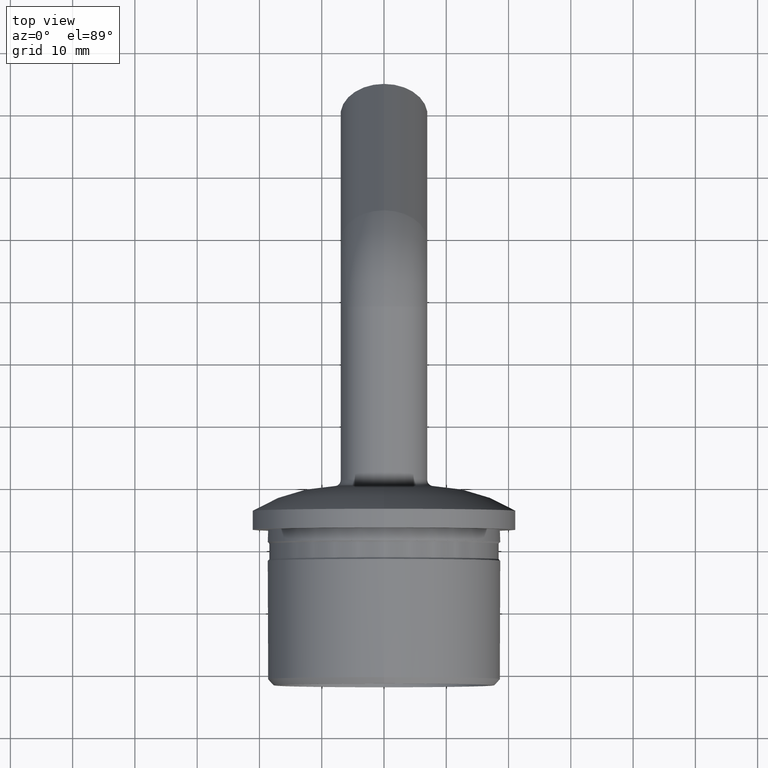
[diagram: clean part render]
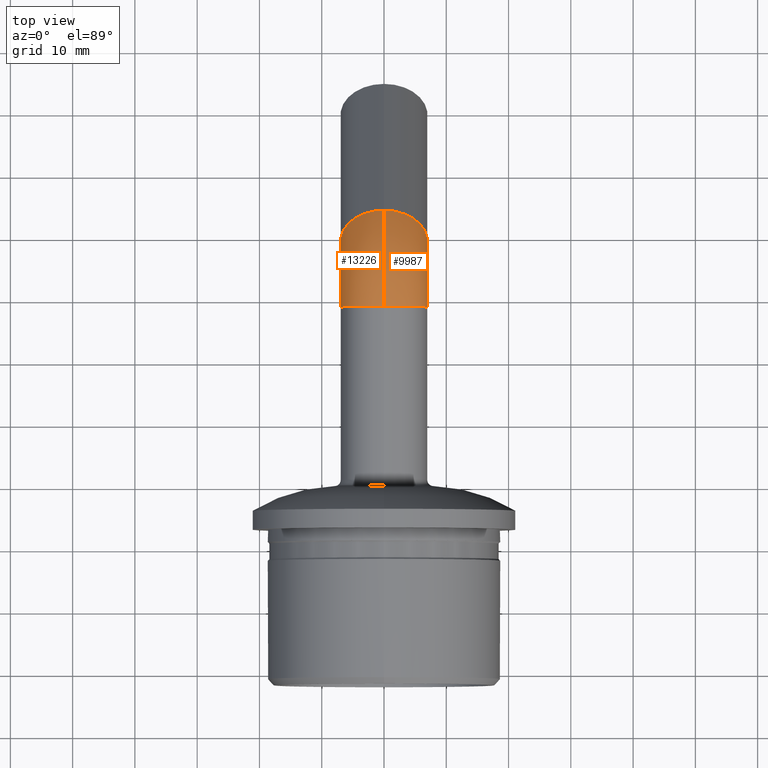
[diagram: same view with one multi-face feature highlighted, each face labeled with its STEP entity id]
A machine part, top view. The highlighted faces form ONE feature: a constant-radius fillet chain: 2 tangent blend faces with common blend radius 7 mm. The faces share edges in the B-rep.
Their STEP definitions:
[1] entity #13226 (Torus):
#99 = VERTEX_POINT ( 'NONE', #7802 ) ;
#306 = DIRECTION ( 'NONE',  ( 0.000000000000000000, 0.000000000000000000, 1.000000000000000000 ) ) ;
#475 = CIRCLE ( 'NONE', #15305, 22.00000000000000000 ) ;
#604 = CARTESIAN_POINT ( 'NONE',  ( 0.000000000000000000, 28.74239912270046915, -15.00000000000000000 ) ) ;
#1012 = ORIENTED_EDGE ( 'NONE', *, *, #15226, .F. ) ;
#1593 = VERTEX_POINT ( 'NONE', #2679 ) ;
#1655 = CARTESIAN_POINT ( 'NONE',  ( 8.572527594031473190E-16, 28.74239912270041231, 7.000000000000000888 ) ) ;
#1996 = DIRECTION ( 'NONE',  ( 0.000000000000000000, 0.000000000000000000, 1.000000000000000000 ) ) ;
#2462 = AXIS2_PLACEMENT_3D ( 'NONE', #604, #3029, #12825 ) ;
#2679 = CARTESIAN_POINT ( 'NONE',  ( 8.572527594031473190E-16, 34.39572806762198809, -9.339622641509434331 ) ) ;
#3029 = DIRECTION ( 'NONE',  ( -1.000000000000000000, -0.000000000000000000, -0.000000000000000000 ) ) ;
#3191 = ORIENTED_EDGE ( 'NONE', *, *, #12633, .T. ) ;
#4470 = CARTESIAN_POINT ( 'NONE',  ( 0.000000000000000000, 28.74239912270046915, -15.00000000000000000 ) ) ;
#4520 = CARTESIAN_POINT ( 'NONE',  ( 0.000000000000000000, 39.34239089442834825, -4.386792452830228228 ) ) ;
#5245 = DIRECTION ( 'NONE',  ( 0.000000000000000000, 1.000000000000000000, 0.000000000000000000 ) ) ;
#5779 = CARTESIAN_POINT ( 'NONE',  ( 8.572527594031473190E-16, 28.74239912270046915, -15.00000000000000000 ) ) ;
#5904 = CIRCLE ( 'NONE', #14287, 7.000000000000000888 ) ;
#6548 = AXIS2_PLACEMENT_3D ( 'NONE', #14999, #5245, #306 ) ;
#7039 = DIRECTION ( 'NONE',  ( 0.000000000000000000, 0.7075471698113150465, -0.7066661181151946414 ) ) ;
#7252 = CIRCLE ( 'NONE', #15748, 8.000000000000000000 ) ;
#7725 = EDGE_LOOP ( 'NONE', ( #3191, #11818, #1012, #11773 ) ) ;
#7802 = CARTESIAN_POINT ( 'NONE',  ( 0.000000000000000000, 28.74239912270041231, -6.999999999999999112 ) ) ;
#8067 = EDGE_CURVE ( 'NONE', #9757, #14762, #475, .T. ) ;
#8400 = DIRECTION ( 'NONE',  ( -1.000000000000000000, -0.000000000000000000, -0.000000000000000000 ) ) ;
#9525 = CARTESIAN_POINT ( 'NONE',  ( 0.000000000000000000, 44.28905372123471551, 0.5660377358489765420 ) ) ;
#9757 = VERTEX_POINT ( 'NONE', #1655 ) ;
#10724 = DIRECTION ( 'NONE',  ( 0.000000000000000000, 0.7066661181151947524, 0.7075471698113149355 ) ) ;
#11749 = CIRCLE ( 'NONE', #6548, 7.000000000000000000 ) ;
#11773 = ORIENTED_EDGE ( 'NONE', *, *, #13710, .F. ) ;
#11818 = ORIENTED_EDGE ( 'NONE', *, *, #8067, .T. ) ;
#12018 = TOROIDAL_SURFACE ( 'NONE', #2462, 15.00000000000000000, 7.000000000000000000 ) ;
#12585 = FACE_OUTER_BOUND ( 'NONE', #7725, .T. ) ;
#12633 = EDGE_CURVE ( 'NONE', #99, #9757, #11749, .T. ) ;
#12825 = DIRECTION ( 'NONE',  ( 0.000000000000000000, 0.000000000000000000, 1.000000000000000000 ) ) ;
#13226 = ADVANCED_FACE ( 'NONE', ( #12585 ), #12018, .T. ) ;
#13710 = EDGE_CURVE ( 'NONE', #99, #1593, #7252, .T. ) ;
#14287 = AXIS2_PLACEMENT_3D ( 'NONE', #4520, #7039, #10724 ) ;
#14762 = VERTEX_POINT ( 'NONE', #9525 ) ;
#14999 = CARTESIAN_POINT ( 'NONE',  ( 0.000000000000000000, 28.74239912270041231, 7.133037242339410149E-16 ) ) ;
#15226 = EDGE_CURVE ( 'NONE', #1593, #14762, #5904, .T. ) ;
#15305 = AXIS2_PLACEMENT_3D ( 'NONE', #4470, #15479, #1996 ) ;
#15479 = DIRECTION ( 'NONE',  ( -1.000000000000000000, -0.000000000000000000, -0.000000000000000000 ) ) ;
#15703 = DIRECTION ( 'NONE',  ( 0.000000000000000000, 0.000000000000000000, 1.000000000000000000 ) ) ;
#15748 = AXIS2_PLACEMENT_3D ( 'NONE', #5779, #8400, #15703 ) ;
[2] entity #9987 (Torus):
#99 = VERTEX_POINT ( 'NONE', #7802 ) ;
#475 = CIRCLE ( 'NONE', #15305, 22.00000000000000000 ) ;
#483 = AXIS2_PLACEMENT_3D ( 'NONE', #14244, #14582, #6233 ) ;
#1227 = ORIENTED_EDGE ( 'NONE', *, *, #13710, .T. ) ;
#1483 = DIRECTION ( 'NONE',  ( 0.000000000000000000, 0.000000000000000000, 1.000000000000000000 ) ) ;
#1593 = VERTEX_POINT ( 'NONE', #2679 ) ;
#1627 = EDGE_LOOP ( 'NONE', ( #15639, #6220, #1227, #4432 ) ) ;
#1655 = CARTESIAN_POINT ( 'NONE',  ( 8.572527594031473190E-16, 28.74239912270041231, 7.000000000000000888 ) ) ;
#1996 = DIRECTION ( 'NONE',  ( 0.000000000000000000, 0.000000000000000000, 1.000000000000000000 ) ) ;
#2499 = CARTESIAN_POINT ( 'NONE',  ( 0.000000000000000000, 28.74239912270046915, -15.00000000000000000 ) ) ;
#2679 = CARTESIAN_POINT ( 'NONE',  ( 8.572527594031473190E-16, 34.39572806762198809, -9.339622641509434331 ) ) ;
#2697 = DIRECTION ( 'NONE',  ( 0.000000000000000000, 1.000000000000000000, 0.000000000000000000 ) ) ;
#3472 = FACE_OUTER_BOUND ( 'NONE', #1627, .T. ) ;
#3775 = AXIS2_PLACEMENT_3D ( 'NONE', #12531, #2697, #1483 ) ;
#4432 = ORIENTED_EDGE ( 'NONE', *, *, #4681, .F. ) ;
#4470 = CARTESIAN_POINT ( 'NONE',  ( 0.000000000000000000, 28.74239912270046915, -15.00000000000000000 ) ) ;
#4681 = EDGE_CURVE ( 'NONE', #14762, #1593, #15217, .T. ) ;
#5779 = CARTESIAN_POINT ( 'NONE',  ( 8.572527594031473190E-16, 28.74239912270046915, -15.00000000000000000 ) ) ;
#6220 = ORIENTED_EDGE ( 'NONE', *, *, #12525, .T. ) ;
#6233 = DIRECTION ( 'NONE',  ( 0.000000000000000000, 0.7066661181151947524, 0.7075471698113149355 ) ) ;
#7252 = CIRCLE ( 'NONE', #15748, 8.000000000000000000 ) ;
#7452 = DIRECTION ( 'NONE',  ( -1.000000000000000000, -0.000000000000000000, -0.000000000000000000 ) ) ;
#7802 = CARTESIAN_POINT ( 'NONE',  ( 0.000000000000000000, 28.74239912270041231, -6.999999999999999112 ) ) ;
#8067 = EDGE_CURVE ( 'NONE', #9757, #14762, #475, .T. ) ;
#8400 = DIRECTION ( 'NONE',  ( -1.000000000000000000, -0.000000000000000000, -0.000000000000000000 ) ) ;
#9525 = CARTESIAN_POINT ( 'NONE',  ( 0.000000000000000000, 44.28905372123471551, 0.5660377358489765420 ) ) ;
#9666 = CIRCLE ( 'NONE', #3775, 7.000000000000000000 ) ;
#9757 = VERTEX_POINT ( 'NONE', #1655 ) ;
#9987 = ADVANCED_FACE ( 'NONE', ( #3472 ), #10176, .T. ) ;
#10176 = TOROIDAL_SURFACE ( 'NONE', #15118, 15.00000000000000000, 7.000000000000000000 ) ;
#12340 = DIRECTION ( 'NONE',  ( 0.000000000000000000, 0.000000000000000000, 1.000000000000000000 ) ) ;
#12525 = EDGE_CURVE ( 'NONE', #9757, #99, #9666, .T. ) ;
#12531 = CARTESIAN_POINT ( 'NONE',  ( 0.000000000000000000, 28.74239912270041231, 7.133037242339410149E-16 ) ) ;
#13710 = EDGE_CURVE ( 'NONE', #99, #1593, #7252, .T. ) ;
#14244 = CARTESIAN_POINT ( 'NONE',  ( 0.000000000000000000, 39.34239089442834825, -4.386792452830228228 ) ) ;
#14582 = DIRECTION ( 'NONE',  ( 0.000000000000000000, 0.7075471698113150465, -0.7066661181151946414 ) ) ;
#14762 = VERTEX_POINT ( 'NONE', #9525 ) ;
#15118 = AXIS2_PLACEMENT_3D ( 'NONE', #2499, #7452, #12340 ) ;
#15217 = CIRCLE ( 'NONE', #483, 7.000000000000000888 ) ;
#15305 = AXIS2_PLACEMENT_3D ( 'NONE', #4470, #15479, #1996 ) ;
#15479 = DIRECTION ( 'NONE',  ( -1.000000000000000000, -0.000000000000000000, -0.000000000000000000 ) ) ;
#15639 = ORIENTED_EDGE ( 'NONE', *, *, #8067, .F. ) ;
#15703 = DIRECTION ( 'NONE',  ( 0.000000000000000000, 0.000000000000000000, 1.000000000000000000 ) ) ;
#15748 = AXIS2_PLACEMENT_3D ( 'NONE', #5779, #8400, #15703 ) ;